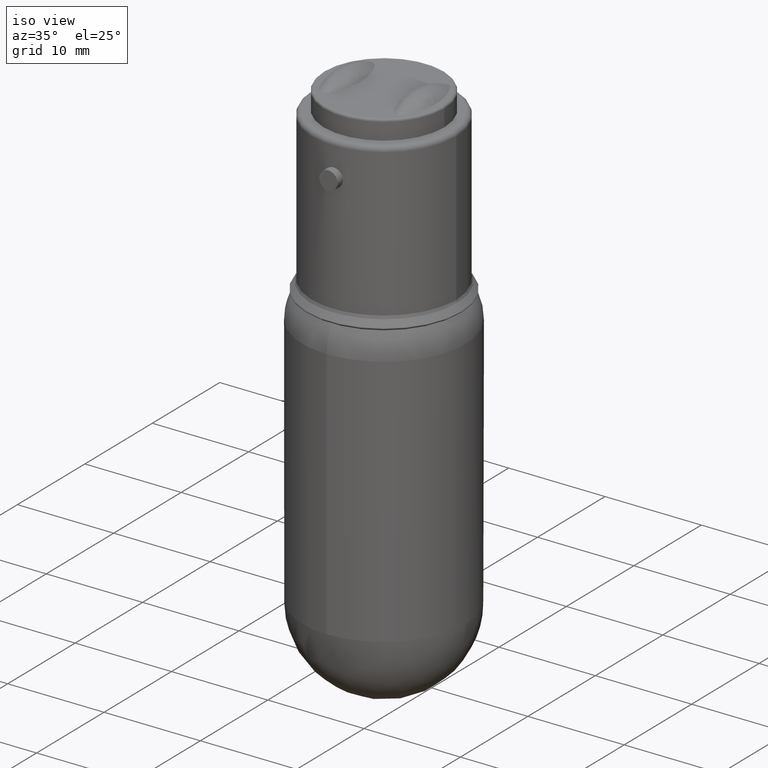
[diagram: clean part render]
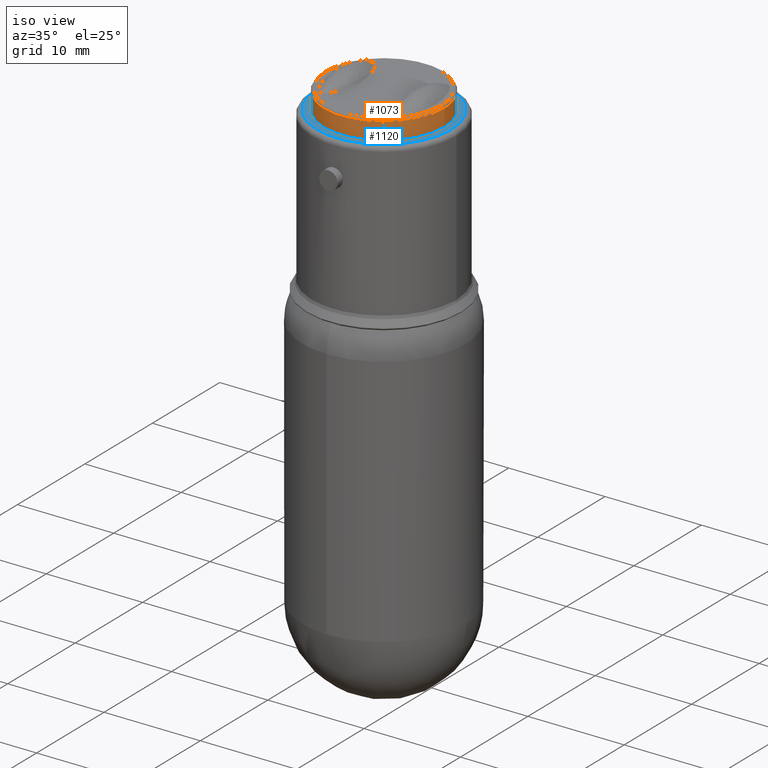
[diagram: same view with the hole feature highlighted: cylindrical wall and planar end face, labeled with their STEP entity ids]
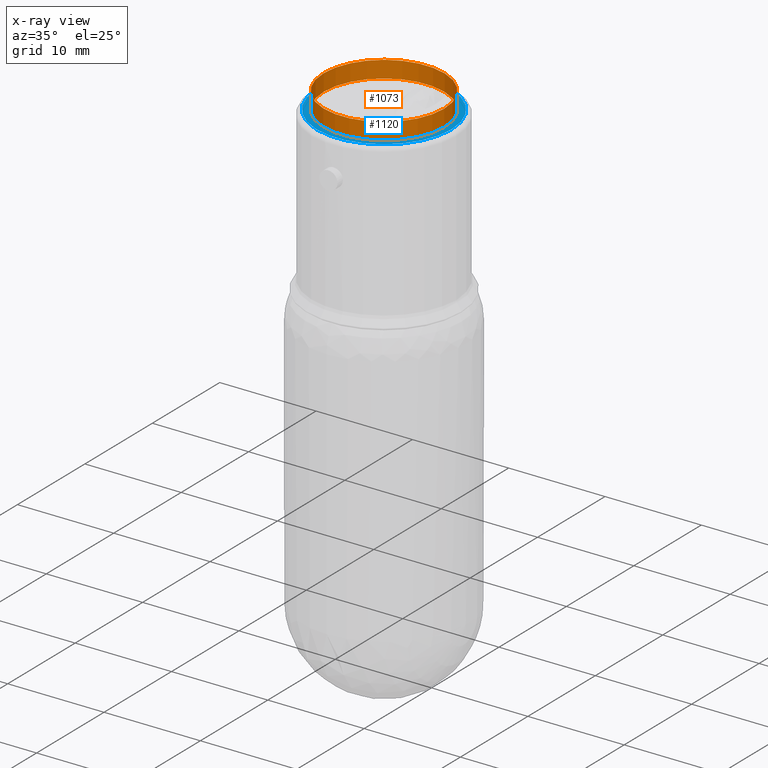
[diagram: x-ray of the same camera — body ghosted, the hole faces saturated]
A machine part, iso view. The highlighted faces form one hole feature of diameter 12.5 mm: the cylindrical wall (entity #1073, orange) and its adjacent planar end face (entity #1120, blue) — they share a circular edge in the B-rep.
The next image is the same camera in x-ray (body ghosted, the hole faces saturated) — the bore reads through the body.
Wall:
#1042=CARTESIAN_POINT('',(-5.697431124239413,5.734766993235530,17.750000000000000));
#1043=VERTEX_POINT('',#1042);
#1044=CARTESIAN_POINT('',(-11.947431124239413,5.734766993235528,17.750000000000000));
#1045=DIRECTION('',(0.0,0.0,1.0));
#1046=DIRECTION('',(-1.0,0.0,0.0));
#1047=AXIS2_PLACEMENT_3D('',#1044,#1045,#1046);
#1048=CIRCLE('',#1047,6.250000000000000);
#1049=EDGE_CURVE('',#1043,#1043,#1048,.T.);
#1054=CARTESIAN_POINT('',(-11.947431124239413,5.734766993235528,16.0));
#1055=DIRECTION('',(0.0,0.0,1.0));
#1056=DIRECTION('',(-1.0,0.0,0.0));
#1057=AXIS2_PLACEMENT_3D('',#1054,#1055,#1056);
#1058=CYLINDRICAL_SURFACE('',#1057,6.250000000000000);
#1059=CARTESIAN_POINT('',(-5.697431124239413,5.734766993235530,16.0));
#1060=VERTEX_POINT('',#1059);
#1061=CARTESIAN_POINT('',(-11.947431124239413,5.734766993235528,16.0));
#1062=DIRECTION('',(0.0,0.0,-1.0));
#1063=DIRECTION('',(-1.0,0.0,0.0));
#1064=AXIS2_PLACEMENT_3D('',#1061,#1062,#1063);
#1065=CIRCLE('',#1064,6.250000000000000);
#1066=EDGE_CURVE('',#1060,#1060,#1065,.T.);
#1067=ORIENTED_EDGE('',*,*,#1066,.F.);
#1068=EDGE_LOOP('',(#1067));
#1069=FACE_OUTER_BOUND('',#1068,.T.);
#1070=ORIENTED_EDGE('',*,*,#1049,.F.);
#1071=EDGE_LOOP('',(#1070));
#1072=FACE_BOUND('',#1071,.T.);
#1073=ADVANCED_FACE('',(#1069,#1072),#1058,.T.);
End face:
#1059=CARTESIAN_POINT('',(-5.697431124239413,5.734766993235530,16.0));
#1060=VERTEX_POINT('',#1059);
#1061=CARTESIAN_POINT('',(-11.947431124239413,5.734766993235528,16.0));
#1062=DIRECTION('',(0.0,0.0,-1.0));
#1063=DIRECTION('',(-1.0,0.0,0.0));
#1064=AXIS2_PLACEMENT_3D('',#1061,#1062,#1063);
#1065=CIRCLE('',#1064,6.250000000000000);
#1066=EDGE_CURVE('',#1060,#1060,#1065,.T.);
#1094=CARTESIAN_POINT('',(-4.947431124239414,5.734766993235527,16.0));
#1095=VERTEX_POINT('',#1094);
#1096=CARTESIAN_POINT('',(-11.947431124239413,5.734766993235528,16.0));
#1097=DIRECTION('',(0.0,0.0,-1.0));
#1098=DIRECTION('',(-1.0,0.0,0.0));
#1099=AXIS2_PLACEMENT_3D('',#1096,#1097,#1098);
#1100=CIRCLE('',#1099,7.0);
#1101=EDGE_CURVE('',#1095,#1095,#1100,.T.);
#1109=CARTESIAN_POINT('',(-11.947431124239413,5.734766993235528,16.0));
#1110=DIRECTION('',(0.0,0.0,-1.0));
#1111=DIRECTION('',(-1.0,0.0,0.0));
#1112=AXIS2_PLACEMENT_3D('',#1109,#1110,#1111);
#1113=PLANE('',#1112);
#1114=ORIENTED_EDGE('',*,*,#1101,.F.);
#1115=EDGE_LOOP('',(#1114));
#1116=FACE_OUTER_BOUND('',#1115,.T.);
#1117=ORIENTED_EDGE('',*,*,#1066,.T.);
#1118=EDGE_LOOP('',(#1117));
#1119=FACE_BOUND('',#1118,.T.);
#1120=ADVANCED_FACE('',(#1116,#1119),#1113,.F.);